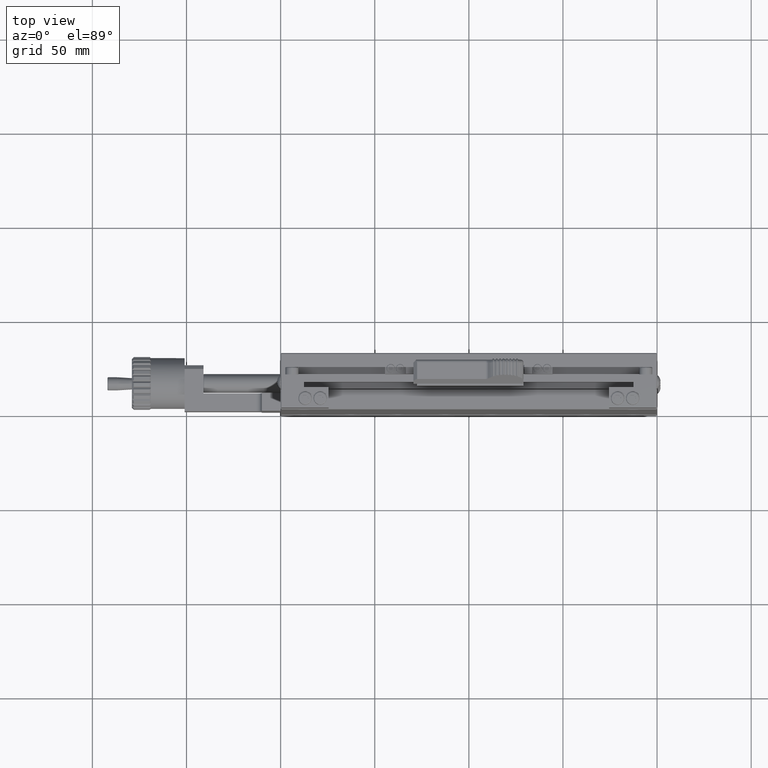
[diagram: clean part render]
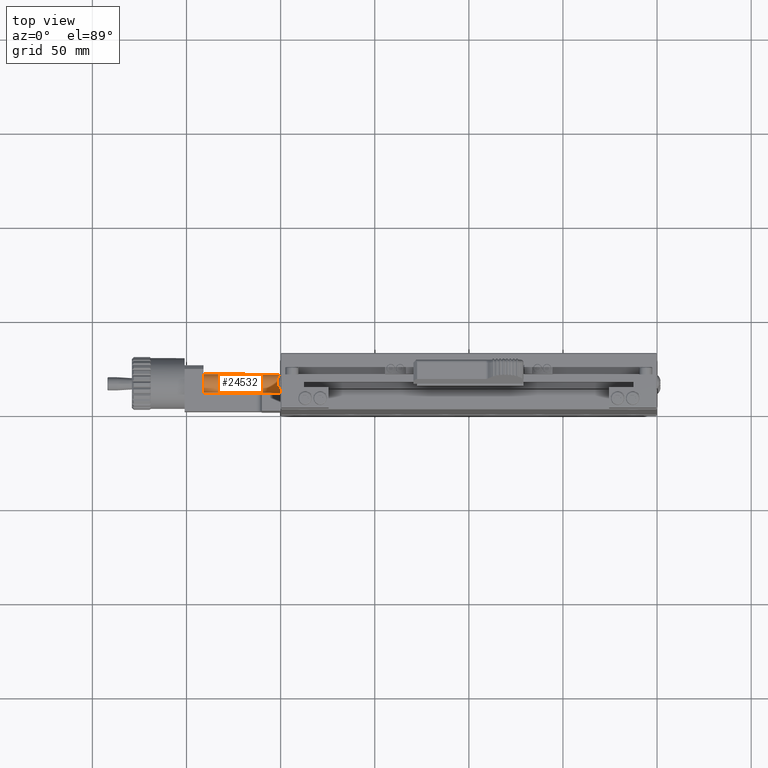
[diagram: same view with one face highlighted and labeled with its STEP entity id]
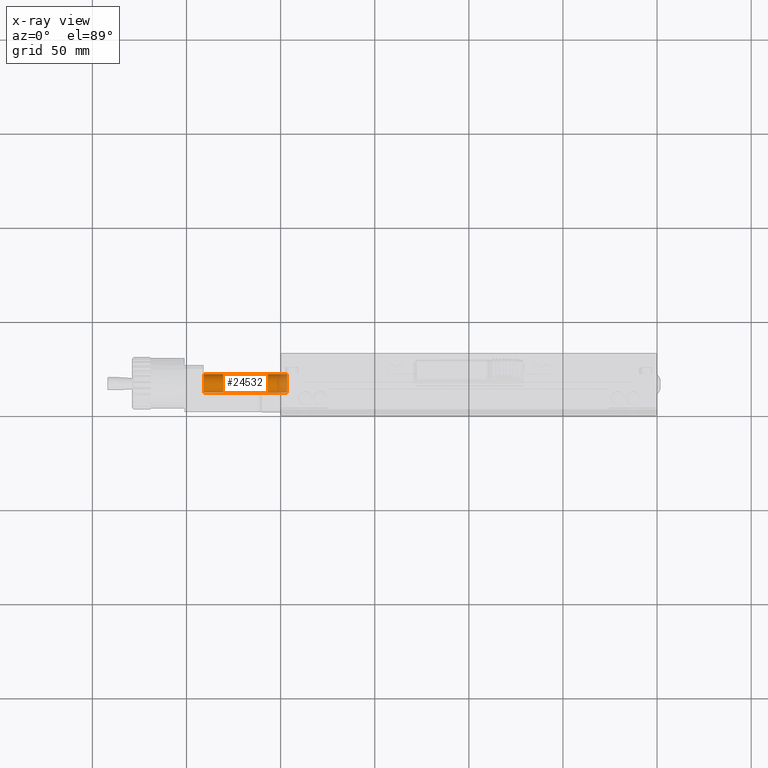
[diagram: x-ray of the same camera — body ghosted, the highlighted face saturated]
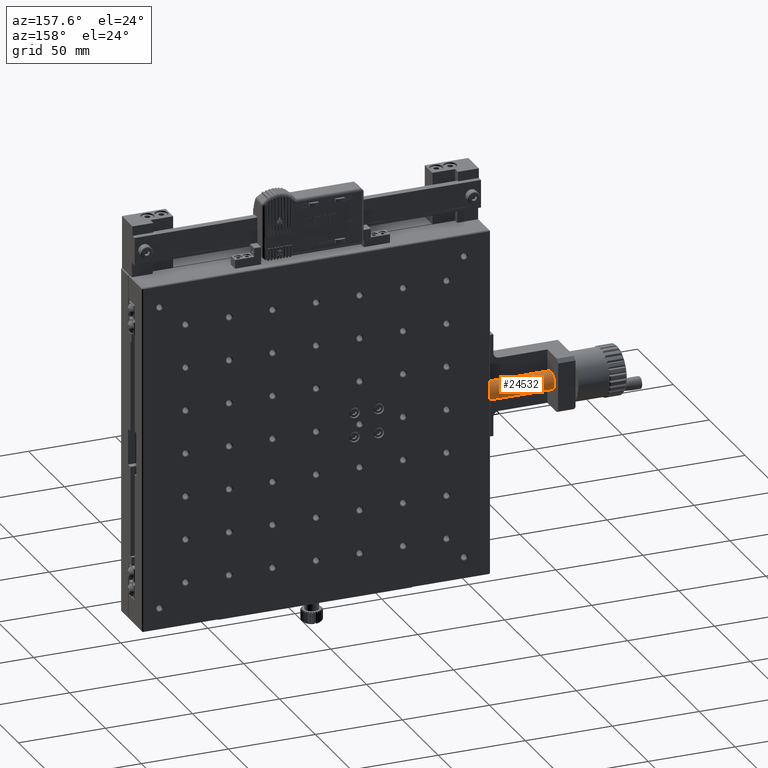
[diagram: same view with one face highlighted and labeled with its STEP entity id]
A machine part, top view. The second image highlights one B-rep face of the part: STEP entity #24532.
The next image is the same camera in x-ray: the body ghosted, the highlighted face saturated — about 10% of this face is hidden behind the body in this view.
A second angle (auxiliary view) of the same face is appended — the face is thin or edge-on in the first view.
In plain terms, the highlighted cylindrical surface (bore or boss wall) has radius 5 mm, axis along (1, 0, 0).
Its self-contained STEP definition (entity closure, byte-faithful):
#548 = CARTESIAN_POINT ( 'NONE',  ( -196.5999999999999943, 15.50000000000000000, 0.000000000000000000 ) ) ;
#812 = AXIS2_PLACEMENT_3D ( 'NONE', #61840, #36511, #25706 ) ;
#1896 = EDGE_LOOP ( 'NONE', ( #15569 ) ) ;
#7377 = CYLINDRICAL_SURFACE ( 'NONE', #29988, 5.000000000000009770 ) ;
#15561 = CARTESIAN_POINT ( 'NONE',  ( -240.8000000000356522, 15.50000000000000000, -4.999999999995452526 ) ) ;
#15569 = ORIENTED_EDGE ( 'NONE', *, *, #18309, .F. ) ;
#18309 = EDGE_CURVE ( 'NONE', #35466, #35466, #21297, .T. ) ;
#21297 = CIRCLE ( 'NONE', #812, 4.999999999995452526 ) ;
#24532 = ADVANCED_FACE ( 'NONE', ( #37421, #52953 ), #7377, .T. ) ;
#25706 = DIRECTION ( 'NONE',  ( 0.000000000000000000, 0.000000000000000000, -1.000000000000000000 ) ) ;
#27960 = DIRECTION ( 'NONE',  ( 1.000000000000000000, 0.000000000000000000, 0.000000000000000000 ) ) ;
#29311 = EDGE_LOOP ( 'NONE', ( #35116 ) ) ;
#29988 = AXIS2_PLACEMENT_3D ( 'NONE', #53283, #27960, #63444 ) ;
#31912 = EDGE_CURVE ( 'NONE', #56317, #56317, #56513, .T. ) ;
#35116 = ORIENTED_EDGE ( 'NONE', *, *, #31912, .T. ) ;
#35466 = VERTEX_POINT ( 'NONE', #15561 ) ;
#36511 = DIRECTION ( 'NONE',  ( -1.000000000000000000, -0.000000000000000000, -0.000000000000000000 ) ) ;
#37421 = FACE_OUTER_BOUND ( 'NONE', #1896, .T. ) ;
#41074 = DIRECTION ( 'NONE',  ( -1.000000000000000000, -0.000000000000000000, -0.000000000000000000 ) ) ;
#46189 = CARTESIAN_POINT ( 'NONE',  ( -196.5999999999999943, 15.50000000000000000, -5.000000000000009770 ) ) ;
#50001 = AXIS2_PLACEMENT_3D ( 'NONE', #548, #41074, #51196 ) ;
#51196 = DIRECTION ( 'NONE',  ( 0.000000000000000000, 0.000000000000000000, -1.000000000000000000 ) ) ;
#52953 = FACE_OUTER_BOUND ( 'NONE', #29311, .T. ) ;
#53283 = CARTESIAN_POINT ( 'NONE',  ( 250.0000000000000000, 15.50000000000000000, 0.000000000000000000 ) ) ;
#56317 = VERTEX_POINT ( 'NONE', #46189 ) ;
#56513 = CIRCLE ( 'NONE', #50001, 5.000000000000009770 ) ;
#61840 = CARTESIAN_POINT ( 'NONE',  ( -240.8000000000356522, 15.50000000000000000, 0.000000000000000000 ) ) ;
#63444 = DIRECTION ( 'NONE',  ( 0.000000000000000000, 0.000000000000000000, -1.000000000000000000 ) ) ;